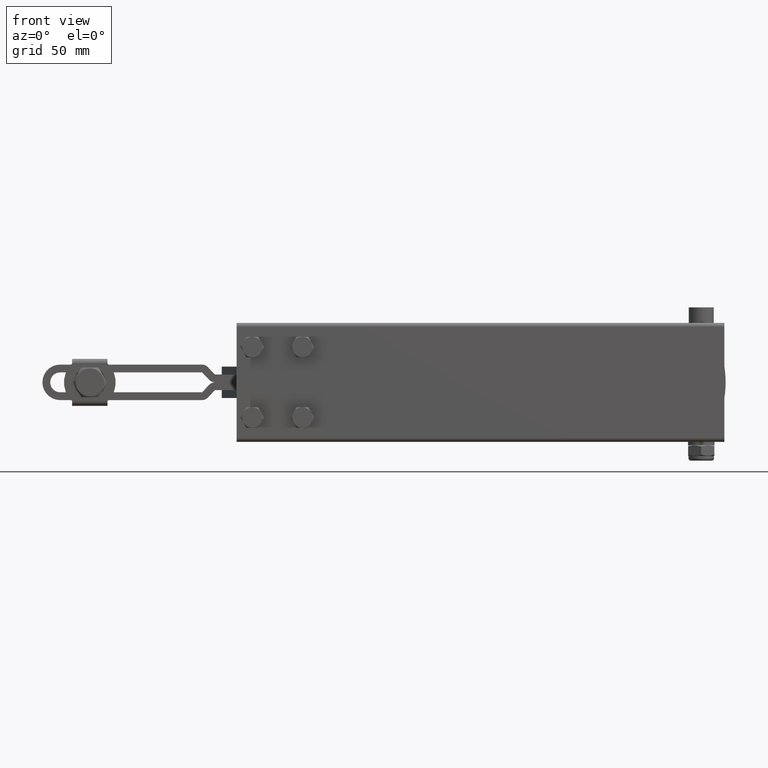
[diagram: clean part render]
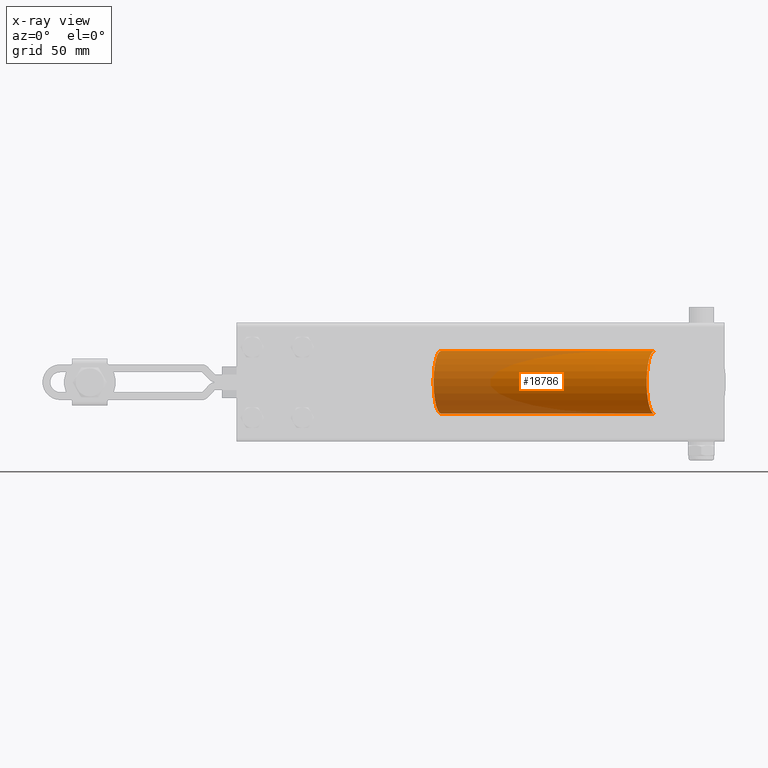
[diagram: x-ray — body ghosted, one internal face saturated and labeled with its STEP entity id]
A machine part, front view, then the same camera in x-ray: the body is ghosted and one INTERNAL B-rep face — a face not visible from any outside direction — is saturated and labeled: STEP entity #18786.
In plain terms, the highlighted cylindrical surface (edge-blend (fillet) strip) has radius 20 mm, axis along (0.9717, -0.2364, -0).
Its self-contained STEP definition (entity closure, byte-faithful):
#614 = AXIS2_PLACEMENT_3D ( 'NONE', #13978, #3002, #15810 ) ;
#869 = ORIENTED_EDGE ( 'NONE', *, *, #15164, .T. ) ;
#1881 = FACE_OUTER_BOUND ( 'NONE', #22144, .T. ) ;
#2124 = CARTESIAN_POINT ( 'NONE',  ( 77.54560281231977100, 75.91925648994328000, 5.308465016745755700E-016 ) ) ;
#3002 = DIRECTION ( 'NONE',  ( 0.9716631414484021600, -0.2363699209938154900, -3.539883030537299400E-017 ) ) ;
#3230 = VECTOR ( 'NONE', #20878, 1000.000000000000100 ) ;
#3381 = CARTESIAN_POINT ( 'NONE',  ( 77.54560281231964300, 75.91925648994279600, -19.99999999999999600 ) ) ;
#5706 = DIRECTION ( 'NONE',  ( 0.9716631414484021600, -0.2363699209938154900, -3.539883030537299400E-017 ) ) ;
#6641 = AXIS2_PLACEMENT_3D ( 'NONE', #2124, #20387, #22304 ) ;
#6664 = CIRCLE ( 'NONE', #18573, 19.99999999999999600 ) ;
#6681 = CARTESIAN_POINT ( 'NONE',  ( 77.54560281231989900, 75.91925648994377700, 19.99999999999999600 ) ) ;
#7506 = LINE ( 'NONE', #15435, #3230 ) ;
#7960 = ORIENTED_EDGE ( 'NONE', *, *, #15774, .F. ) ;
#8033 = ORIENTED_EDGE ( 'NONE', *, *, #14569, .T. ) ;
#8322 = CARTESIAN_POINT ( 'NONE',  ( 213.5784426150961800, 42.82746755080960800, 19.99999999999999300 ) ) ;
#8530 = VECTOR ( 'NONE', #18032, 1000.000000000000100 ) ;
#9188 = CIRCLE ( 'NONE', #614, 19.99999999999999600 ) ;
#13108 = CARTESIAN_POINT ( 'NONE',  ( 77.54560281231964300, 75.91925648994279600, -19.99999999999999600 ) ) ;
#13678 = ORIENTED_EDGE ( 'NONE', *, *, #21664, .F. ) ;
#13978 = CARTESIAN_POINT ( 'NONE',  ( 77.54560281231977100, 75.91925648994328000, 5.308465016745755700E-016 ) ) ;
#14217 = CYLINDRICAL_SURFACE ( 'NONE', #6641, 19.99999999999999600 ) ;
#14569 = EDGE_CURVE ( 'NONE', #20471, #15271, #6664, .T. ) ;
#14861 = VERTEX_POINT ( 'NONE', #6681 ) ;
#15164 = EDGE_CURVE ( 'NONE', #14861, #20471, #7506, .T. ) ;
#15271 = VERTEX_POINT ( 'NONE', #19758 ) ;
#15435 = CARTESIAN_POINT ( 'NONE',  ( 77.54560281231989900, 75.91925648994377700, 19.99999999999999600 ) ) ;
#15774 = EDGE_CURVE ( 'NONE', #14861, #22343, #9188, .T. ) ;
#15810 = DIRECTION ( 'NONE',  ( -6.245004513516506300E-015, -2.428612866367530200E-014, -1.000000000000000000 ) ) ;
#16714 = CARTESIAN_POINT ( 'NONE',  ( 213.5784426150960700, 42.82746755080913200, -4.424989741077643400E-015 ) ) ;
#18032 = DIRECTION ( 'NONE',  ( 0.9716631414484020500, -0.2363699209938154600, -3.539883030537298800E-017 ) ) ;
#18553 = DIRECTION ( 'NONE',  ( -5.551115123125783500E-015, -2.428612866367530200E-014, -1.000000000000000000 ) ) ;
#18573 = AXIS2_PLACEMENT_3D ( 'NONE', #16714, #5706, #18553 ) ;
#18786 = ADVANCED_FACE ( 'NONE', ( #1881 ), #14217, .F. ) ;
#19758 = CARTESIAN_POINT ( 'NONE',  ( 213.5784426150959200, 42.82746755080863500, -20.00000000000000000 ) ) ;
#20387 = DIRECTION ( 'NONE',  ( 0.9716631414484021600, -0.2363699209938154900, -3.539883030537299400E-017 ) ) ;
#20471 = VERTEX_POINT ( 'NONE', #8322 ) ;
#20878 = DIRECTION ( 'NONE',  ( 0.9716631414484020500, -0.2363699209938154600, -3.539883030537298800E-017 ) ) ;
#21664 = EDGE_CURVE ( 'NONE', #22343, #15271, #23168, .T. ) ;
#22144 = EDGE_LOOP ( 'NONE', ( #7960, #869, #8033, #13678 ) ) ;
#22304 = DIRECTION ( 'NONE',  ( -6.245004513516506300E-015, -2.428612866367530200E-014, -1.000000000000000000 ) ) ;
#22343 = VERTEX_POINT ( 'NONE', #13108 ) ;
#23168 = LINE ( 'NONE', #3381, #8530 ) ;